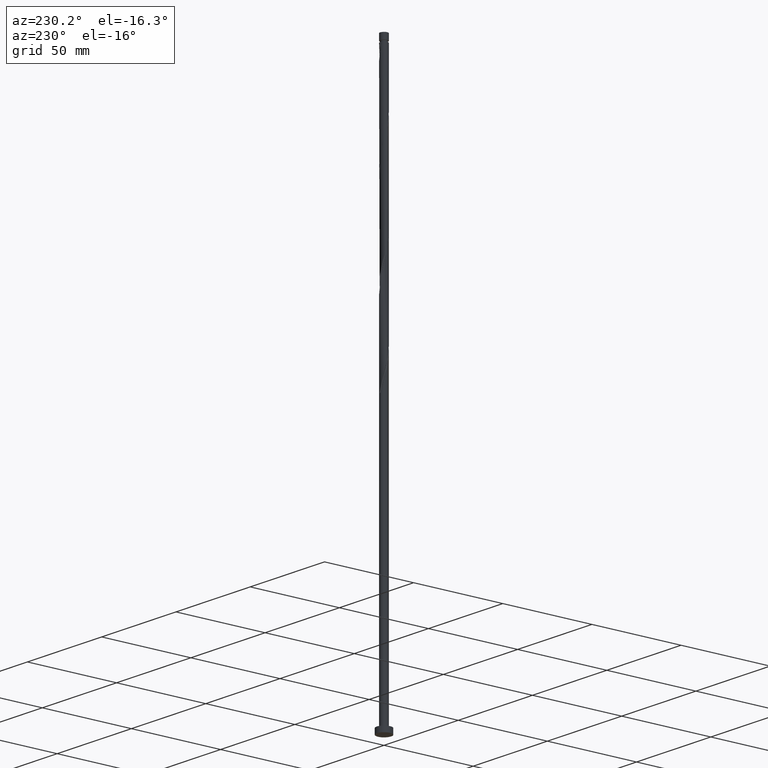
[diagram: clean part render]
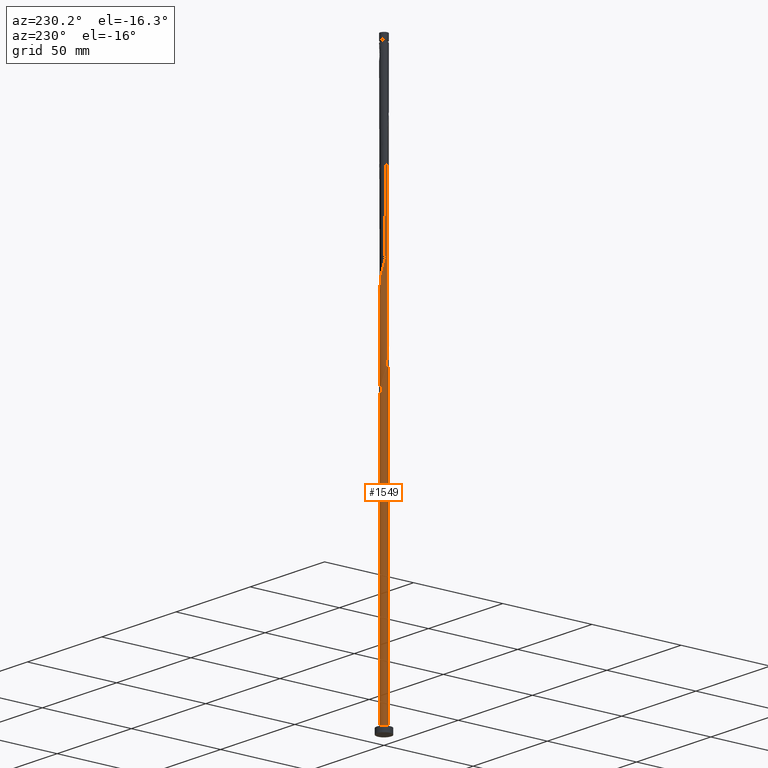
[diagram: same view with one face highlighted and labeled with its STEP entity id]
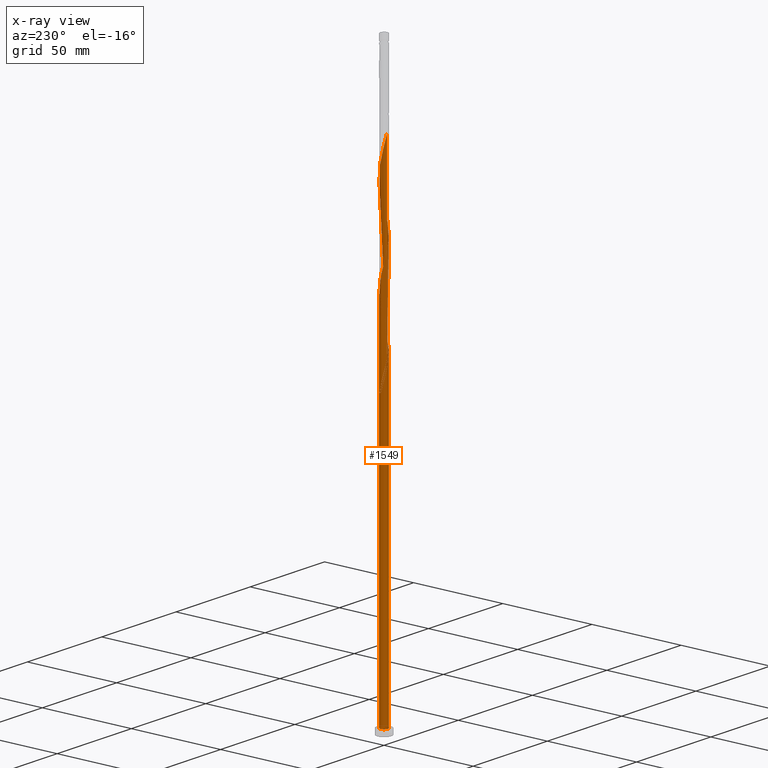
[diagram: x-ray of the same camera — body ghosted, the highlighted face saturated]
A machine part, auxiliary view. The second image highlights one B-rep face of the part: STEP entity #1549.
The next image is the same camera in x-ray: the body ghosted, the highlighted face saturated — about 0% of this face is hidden behind the body in this view.
In plain terms, the highlighted cylindrical surface (bore or boss wall) has radius 2.1 mm, axis along (-0, -0, -1).
Its self-contained STEP definition (entity closure, byte-faithful):
#10 = CARTESIAN_POINT ( 'NONE',  ( -1.080954991017605282, 1.815908065240426250, 156.0155337602938346 ) ) ;
#25 = DIRECTION ( 'NONE',  ( 0.000000000000000000, 0.000000000000000000, 1.000000000000000000 ) ) ;
#42 = CARTESIAN_POINT ( 'NONE',  ( -0.7457696815047974992, 1.977324802898936973, 157.8905337602938630 ) ) ;
#55 = CARTESIAN_POINT ( 'NONE',  ( -2.100000000000000089, 0.000000000000000000, 315.0000000000000000 ) ) ;
#56 = CARTESIAN_POINT ( 'NONE',  ( -2.010914572924960897, -0.6497756338992116687, 167.2655337602938346 ) ) ;
#75 = CARTESIAN_POINT ( 'NONE',  ( -1.815908065240423808, 1.080954991017603728, 163.5155337602938914 ) ) ;
#86 = CARTESIAN_POINT ( 'NONE',  ( 0.2870755166819201620, 2.093698507840350054, 202.8905337602938630 ) ) ;
#97 = CARTESIAN_POINT ( 'NONE',  ( -1.869562289324894211, 0.9564187609694169145, 213.2030337602938630 ) ) ;
#106 = CARTESIAN_POINT ( 'NONE',  ( 0.5164225990933598576, 2.035511655369645290, 254.4530337602938346 ) ) ;
#113 = CARTESIAN_POINT ( 'NONE',  ( -0.8653653124584087530, 1.913411319082694018, 207.5780337602938914 ) ) ;
#121 = CARTESIAN_POINT ( 'NONE',  ( 0.9564187609694171366, 1.869562289324894211, 252.5780337602939198 ) ) ;
#129 = CARTESIAN_POINT ( 'NONE',  ( 0.4178947235847830788, -2.058000000000002938, 231.9530337602938346 ) ) ;
#145 = CARTESIAN_POINT ( 'NONE',  ( -1.977324802898939637, 0.7457696815047990535, 266.6405337602938630 ) ) ;
#146 = CARTESIAN_POINT ( 'NONE',  ( -2.100000000000003197, 1.302273739753111854E-15, 269.6535166823878740 ) ) ;
#151 = CARTESIAN_POINT ( 'NONE',  ( -2.093698507840350498, 0.2870755166819196624, 163.5155337602938914 ) ) ;
#176 = CARTESIAN_POINT ( 'NONE',  ( -1.869562289324894211, 0.9564187609694169145, 265.7030337602939198 ) ) ;
#181 = ORIENTED_EDGE ( 'NONE', *, *, #1765, .T. ) ;
#185 = CARTESIAN_POINT ( 'NONE',  ( -2.100000000000000089, 0.000000000000000000, 315.0000000000000000 ) ) ;
#192 = VERTEX_POINT ( 'NONE', #254 ) ;
#196 = CARTESIAN_POINT ( 'NONE',  ( 0.4178947235847830788, -2.058000000000002938, 179.4530337602938630 ) ) ;
#203 = DIRECTION ( 'NONE',  ( -0.000000000000000000, -0.000000000000000000, -1.000000000000000000 ) ) ;
#204 = CARTESIAN_POINT ( 'NONE',  ( 1.815908065240426472, 1.080954991017604838, 195.3905337602938630 ) ) ;
#211 = CARTESIAN_POINT ( 'NONE',  ( 1.761799775750848562, -1.167067840434034665, 186.0155337602938062 ) ) ;
#219 = CARTESIAN_POINT ( 'NONE',  ( 0.7457696815047992756, 1.977324802898939637, 201.0155337602938914 ) ) ;
#226 = CARTESIAN_POINT ( 'NONE',  ( 1.457930751211418796, -1.529844344593006999, 236.6405337602937777 ) ) ;
#234 = CARTESIAN_POINT ( 'NONE',  ( -2.010914572924960897, -0.6497756338992116687, 219.7655337602938062 ) ) ;
#244 = CARTESIAN_POINT ( 'NONE',  ( -2.105085427075044979, -0.1860138132703543223, 217.8905337602938346 ) ) ;
#252 = CARTESIAN_POINT ( 'NONE',  ( 1.167067840434034665, 1.761799775750848118, 251.6405337602938346 ) ) ;
#254 = CARTESIAN_POINT ( 'NONE',  ( 2.100000000000000089, 0.000000000000000000, 3.000000000000000000 ) ) ;
#257 = CARTESIAN_POINT ( 'NONE',  ( -1.869562289324894211, 0.9564187609694169145, 160.7030337602938914 ) ) ;
#261 = CARTESIAN_POINT ( 'NONE',  ( 2.093698507840350054, -0.2870755166819199955, 242.2655337602938630 ) ) ;
#301 = DIRECTION ( 'NONE',  ( 0.000000000000000000, -0.000000000000000000, -1.000000000000000000 ) ) ;
#330 = CARTESIAN_POINT ( 'NONE',  ( 2.010914572924960897, 0.6497756338992115577, 193.5155337602938062 ) ) ;
#336 = CARTESIAN_POINT ( 'NONE',  ( 1.080954991017604838, -1.815908065240426472, 182.2655337602938346 ) ) ;
#343 = CARTESIAN_POINT ( 'NONE',  ( -1.529844344593006999, -1.457930751211418796, 171.0155337602938346 ) ) ;
#347 = DIRECTION ( 'NONE',  ( -1.000000000000000000, 0.000000000000000000, 0.000000000000000000 ) ) ;
#353 = CARTESIAN_POINT ( 'NONE',  ( -2.100000000000003642, -1.932887671037570371E-15, 164.6535166823878171 ) ) ;
#364 = CARTESIAN_POINT ( 'NONE',  ( 2.035511655369645290, -0.5164225990933597465, 241.3280337602938630 ) ) ;
#373 = CARTESIAN_POINT ( 'NONE',  ( -2.093698507840350498, 0.2870755166819196624, 216.0155337602938630 ) ) ;
#382 = CARTESIAN_POINT ( 'NONE',  ( 2.058000000000002938, 0.4178947235847829123, 245.0780337602938630 ) ) ;
#390 = CARTESIAN_POINT ( 'NONE',  ( -1.080954991017605282, 1.815908065240426250, 261.0155337602938630 ) ) ;
#399 = CARTESIAN_POINT ( 'NONE',  ( -0.7457696815047991645, -1.977324802898939637, 227.2655337602938346 ) ) ;
#410 = CARTESIAN_POINT ( 'NONE',  ( -2.100000000000000089, 0.000000000000000000, 3.000000000000000000 ) ) ;
#452 = CARTESIAN_POINT ( 'NONE',  ( -1.167067840434032222, 1.761799775750846120, 159.7655337602938062 ) ) ;
#462 = EDGE_CURVE ( 'NONE', #192, #553, #1262, .T. ) ;
#463 = CARTESIAN_POINT ( 'NONE',  ( -1.348456092513521387, -1.609865263481134345, 171.9530337602938630 ) ) ;
#471 = CARTESIAN_POINT ( 'NONE',  ( 1.457930751211418796, -1.529844344593006999, 184.1405337602938630 ) ) ;
#479 = CARTESIAN_POINT ( 'NONE',  ( -2.099999999999999645, 2.488872734714418204E-15, 168.0025508381999089 ) ) ;
#480 = CARTESIAN_POINT ( 'NONE',  ( -1.167067840434034665, -1.761799775750848340, 172.8905337602937493 ) ) ;
#487 = CARTESIAN_POINT ( 'NONE',  ( -1.815908065240426472, -1.080954991017605060, 169.1405337602938062 ) ) ;
#495 = CARTESIAN_POINT ( 'NONE',  ( -1.913411319082694018, -0.8653653124584085310, 168.2030337602938914 ) ) ;
#499 = CARTESIAN_POINT ( 'NONE',  ( 0.1860138132703544611, 2.105085427075041427, 154.1405337602938630 ) ) ;
#505 = CARTESIAN_POINT ( 'NONE',  ( -1.167067840434034665, -1.761799775750848340, 225.3905337602938630 ) ) ;
#512 = CARTESIAN_POINT ( 'NONE',  ( 0.6497756338992116687, -2.010914572924960897, 232.8905337602938346 ) ) ;
#521 = CARTESIAN_POINT ( 'NONE',  ( -0.5164225990933595245, -2.035511655369645290, 228.2030337602938914 ) ) ;
#530 = CARTESIAN_POINT ( 'NONE',  ( -0.05053085170578285740, -2.099391967457697739, 230.0780337602938914 ) ) ;
#539 = CARTESIAN_POINT ( 'NONE',  ( -0.6497756338992117797, 2.010914572924960897, 259.1405337602938062 ) ) ;
#553 = VERTEX_POINT ( 'NONE', #410 ) ;
#554 = CARTESIAN_POINT ( 'NONE',  ( -1.269442871114512705, 1.672876204916717180, 156.9530337602938062 ) ) ;
#561 = DIRECTION ( 'NONE',  ( 1.000000000000000000, 0.000000000000000000, 0.000000000000000000 ) ) ;
#579 = VERTEX_POINT ( 'NONE', #146 ) ;
#593 = CARTESIAN_POINT ( 'NONE',  ( -2.099391967457697739, 0.05053085170578271168, 269.4530337602939198 ) ) ;
#601 = EDGE_CURVE ( 'NONE', #579, #1711, #1681, .T. ) ;
#604 = CARTESIAN_POINT ( 'NONE',  ( -0.9564187609694171366, -1.869562289324894211, 173.8280337602938346 ) ) ;
#614 = CARTESIAN_POINT ( 'NONE',  ( 2.105085427075044979, 0.1860138132703540170, 191.6405337602938630 ) ) ;
#620 = CARTESIAN_POINT ( 'NONE',  ( -0.5164225990933595245, -2.035511655369645290, 175.7030337602938914 ) ) ;
#623 = CARTESIAN_POINT ( 'NONE',  ( -0.05053085170578218432, 2.099391967457693298, 155.0780337602938914 ) ) ;
#633 = CARTESIAN_POINT ( 'NONE',  ( 0.05053085170578318353, 2.099391967457698183, 203.8280337602938914 ) ) ;
#643 = CARTESIAN_POINT ( 'NONE',  ( -1.269442871114512705, 1.672876204916717180, 209.4530337602938630 ) ) ;
#653 = CARTESIAN_POINT ( 'NONE',  ( 0.2870755166819201620, 2.093698507840350054, 255.3905337602938062 ) ) ;
#662 = CARTESIAN_POINT ( 'NONE',  ( -1.761799775750848562, 1.167067840434034665, 212.2655337602938346 ) ) ;
#669 = CARTESIAN_POINT ( 'NONE',  ( -0.1860138132703539338, 2.105085427075044979, 257.2655337602938062 ) ) ;
#679 = CARTESIAN_POINT ( 'NONE',  ( -1.609865263481134345, 1.348456092513521165, 263.8280337602938630 ) ) ;
#704 = CARTESIAN_POINT ( 'NONE',  ( -2.100000000000003642, -1.932887671037570371E-15, 164.6535166823878171 ) ) ;
#715 = CARTESIAN_POINT ( 'NONE',  ( -2.099999999999999645, 2.488872734714418599E-15, 168.0025508381999089 ) ) ;
#732 = EDGE_CURVE ( 'NONE', #735, #1512, #954, .T. ) ;
#735 = VERTEX_POINT ( 'NONE', #1678 ) ;
#737 = AXIS2_PLACEMENT_3D ( 'NONE', #1293, #847, #1434 ) ;
#750 = CARTESIAN_POINT ( 'NONE',  ( 1.269442871114512705, -1.672876204916717180, 183.2030337602938914 ) ) ;
#758 = CARTESIAN_POINT ( 'NONE',  ( -1.672876204916714071, 1.269442871114510485, 162.5780337602937777 ) ) ;
#763 = CARTESIAN_POINT ( 'NONE',  ( 1.977324802898939637, -0.7457696815047991645, 187.8905337602938914 ) ) ;
#770 = CARTESIAN_POINT ( 'NONE',  ( 1.167067840434034665, 1.761799775750848118, 199.1405337602938062 ) ) ;
#778 = CARTESIAN_POINT ( 'NONE',  ( -2.099391967457697739, 0.05053085170578271168, 216.9530337602938914 ) ) ;
#786 = CARTESIAN_POINT ( 'NONE',  ( 2.105085427075044979, 0.1860138132703540170, 244.1405337602938346 ) ) ;
#793 = VERTEX_POINT ( 'NONE', #1254 ) ;
#797 = CARTESIAN_POINT ( 'NONE',  ( 1.761799775750848562, -1.167067840434034665, 238.5155337602938630 ) ) ;
#806 = CARTESIAN_POINT ( 'NONE',  ( -1.457930751211419018, 1.529844344593006777, 210.3905337602938346 ) ) ;
#811 = ORIENTED_EDGE ( 'NONE', *, *, #601, .F. ) ;
#812 = CARTESIAN_POINT ( 'NONE',  ( -1.977324802898939637, 0.7457696815047990535, 161.6405337602938062 ) ) ;
#815 = CARTESIAN_POINT ( 'NONE',  ( 1.348456092513521387, 1.609865263481134123, 250.7030337602938346 ) ) ;
#823 =( BOUNDED_CURVE ( )  B_SPLINE_CURVE ( 2, ( #1460, #1326, #1742, #56, #495, #487, #1050, #343, #463, #480, #604, #1043, #620, #1603, #1028, #1058, #196, #1189, #1759, #336, #750, #471, #917, #211, #1594, #763, #1480, #1035, #1588, #614, #893, #330, #1451, #204, #1318, #1748, #910, #770, #1471, #219, #1332, #86, #633, #1198, #1768, #1489, #113, #1788, #643, #806, #1359, #662, #97, #1796, #964, #373, #778, #244, #1208, #234, #1516, #1368, #1102, #1662, #1377, #505, #1227, #399, #521, #1499, #530, #1083, #129, #512, #1074, #1340, #1067, #226, #1626, #797, #1638, #1217, #364, #261, #928, #786, #382, #947, #1349, #1507, #1094, #1647, #815, #252, #121, #937, #106, #653, #1655, #669, #1236, #539, #1777, #390, #1246, #956, #679, #1804, #176, #145, #1388, #1283, #593, #1425, #1114 ),
 .UNSPECIFIED., .F., .T. ) 
 B_SPLINE_CURVE_WITH_KNOTS ( ( 3, 2, 2, 2, 2, 2, 2, 2, 2, 2, 2, 2, 2, 2, 2, 2, 2, 2, 2, 2, 2, 2, 2, 2, 2, 2, 2, 2, 2, 2, 2, 2, 2, 2, 2, 2, 2, 2, 2, 2, 2, 2, 2, 2, 2, 2, 2, 2, 2, 2, 2, 2, 2, 2, 2, 2, 2, 3 ),
 ( 0.05453034012992211826, 0.06250000000000000000, 0.07142857142857139685, 0.08035714285714290472, 0.08928571428571430157, 0.09821428571428569843, 0.1071428571428570953, 0.1160714285714286031, 0.1250000000000000000, 0.1339285714285713969, 0.1428571428571429047, 0.1517857142857143016, 0.1607142857142856984, 0.1696428571428570953, 0.1785714285714286031, 0.1875000000000000000, 0.1964285714285713969, 0.2053571428571429047, 0.2142857142857143016, 0.2232142857142856984, 0.2321428571428570953, 0.2410714285714286031, 0.2500000000000000000, 0.2589285714285713969, 0.2678571428571429047, 0.2767857142857143016, 0.2857142857142856984, 0.2946428571428570953, 0.3035714285714286031, 0.3125000000000000000, 0.3214285714285713969, 0.3303571428571429047, 0.3392857142857143016, 0.3482142857142856984, 0.3571428571428570953, 0.3660714285714286031, 0.3750000000000000000, 0.3839285714285713969, 0.3928571428571429047, 0.4017857142857143016, 0.4107142857142856984, 0.4196428571428570953, 0.4285714285714286031, 0.4375000000000000000, 0.4464285714285713969, 0.4553571428571429047, 0.4642857142857143016, 0.4732142857142856984, 0.4821428571428570953, 0.4910714285714286031, 0.5000000000000000000, 0.5089285714285713969, 0.5178571428571427937, 0.5267857142857143016, 0.5357142857142856984, 0.5446428571428572063, 0.5535714285714286031, 0.5545303401299220836 ),
 .UNSPECIFIED. ) 
 CURVE ( )  GEOMETRIC_REPRESENTATION_ITEM ( )  RATIONAL_B_SPLINE_CURVE ( ( 0.9079949616362350540, 0.9039886423360981027, 0.9090909090909650159, 0.9033747362666397773, 0.9090909090909650159, 0.9033747362666397773, 0.9090909090909650159, 0.9033747362666397773, 0.9090909090909650159, 0.9033747362666397773, 0.9090909090909650159, 0.9033747362666397773, 0.9090909090909650159, 0.9033747362666397773, 0.9090909090909650159, 0.9033747362666397773, 0.9090909090909650159, 0.9033747362666397773, 0.9090909090909650159, 0.9033747362666397773, 0.9090909090909650159, 0.9033747362666397773, 0.9090909090909650159, 0.9033747362666397773, 0.9090909090909650159, 0.9033747362666397773, 0.9090909090909650159, 0.9033747362666397773, 0.9090909090909650159, 0.9033747362666397773, 0.9090909090909650159, 0.9033747362666397773, 0.9090909090909650159, 0.9033747362666397773, 0.9090909090909650159, 0.9033747362666397773, 0.9090909090909650159, 0.9033747362666397773, 0.9090909090909650159, 0.9033747362666397773, 0.9090909090909650159, 0.9033747362666397773, 0.9090909090909650159, 0.9033747362666397773, 0.9090909090909650159, 0.9033747362666397773, 0.9090909090909650159, 0.9033747362666397773, 0.9090909090909650159, 0.9033747362666397773, 0.9090909090909650159, 0.9033747362666397773, 0.9090909090909650159, 0.9033747362666397773, 0.9090909090909650159, 0.9033747362666397773, 0.9090909090909650159, 0.9033747362666397773, 0.9090909090909650159, 0.9033747362666397773, 0.9090909090909650159, 0.9033747362666397773, 0.9090909090909650159, 0.9033747362666397773, 0.9090909090909650159, 0.9033747362666397773, 0.9090909090909650159, 0.9033747362666397773, 0.9090909090909650159, 0.9033747362666397773, 0.9090909090909650159, 0.9033747362666397773, 0.9090909090909650159, 0.9033747362666397773, 0.9090909090909650159, 0.9033747362666397773, 0.9090909090909650159, 0.9033747362666397773, 0.9090909090909650159, 0.9033747362666397773, 0.9090909090909650159, 0.9033747362666397773, 0.9090909090909650159, 0.9033747362666397773, 0.9090909090909650159, 0.9033747362666397773, 0.9090909090909650159, 0.9033747362666397773, 0.9090909090909650159, 0.9033747362666397773, 0.9090909090909650159, 0.9033747362666397773, 0.9090909090909650159, 0.9033747362666397773, 0.9090909090909650159, 0.9033747362666397773, 0.9090909090909650159, 0.9033747362666397773, 0.9090909090909650159, 0.9033747362666397773, 0.9090909090909650159, 0.9033747362666397773, 0.9090909090909650159, 0.9033747362666397773, 0.9090909090909650159, 0.9033747362666397773, 0.9090909090909650159, 0.9033747362666397773, 0.9090909090909650159, 0.9033747362666397773, 0.9090909090909650159, 0.9033747362666397773, 0.9090909090909650159, 0.9084770030215066905, 0.9079949616362349429 ) ) 
 REPRESENTATION_ITEM ( '' )  );
#832 = ORIENTED_EDGE ( 'NONE', *, *, #977, .T. ) ;
#833 = CARTESIAN_POINT ( 'NONE',  ( -0.8653653124584087530, 1.913411319082694018, 155.0780337602938630 ) ) ;
#840 = EDGE_CURVE ( 'NONE', #1711, #793, #1150, .T. ) ;
#841 = ORIENTED_EDGE ( 'NONE', *, *, #1765, .F. ) ;
#842 = CARTESIAN_POINT ( 'NONE',  ( -0.6497756338992117797, 2.010914572924960897, 154.1405337602938630 ) ) ;
#847 = DIRECTION ( 'NONE',  ( 0.000000000000000000, 0.000000000000000000, 1.000000000000000000 ) ) ;
#853 = VECTOR ( 'NONE', #1473, 1000.000000000000000 ) ;
#866 = EDGE_LOOP ( 'NONE', ( #811, #1677, #181, #1439, #1122, #841, #1253, #832, #1279 ) ) ;
#889 = FACE_OUTER_BOUND ( 'NONE', #866, .T. ) ;
#893 = CARTESIAN_POINT ( 'NONE',  ( 2.058000000000002938, 0.4178947235847829123, 192.5780337602938914 ) ) ;
#901 = DIRECTION ( 'NONE',  ( -0.000000000000000000, -0.000000000000000000, -1.000000000000000000 ) ) ;
#910 = CARTESIAN_POINT ( 'NONE',  ( 1.348456092513521387, 1.609865263481134123, 198.2030337602938630 ) ) ;
#917 = CARTESIAN_POINT ( 'NONE',  ( 1.609865263481134123, -1.348456092513521387, 185.0780337602938914 ) ) ;
#928 = CARTESIAN_POINT ( 'NONE',  ( 2.099391967457697739, -0.05053085170578303087, 243.2030337602938630 ) ) ;
#937 = CARTESIAN_POINT ( 'NONE',  ( 0.7457696815047992756, 1.977324802898939637, 253.5155337602938346 ) ) ;
#941 = CIRCLE ( 'NONE', #968, 2.100000000000000089 ) ;
#947 = CARTESIAN_POINT ( 'NONE',  ( 2.010914572924960897, 0.6497756338992115577, 246.0155337602938062 ) ) ;
#954 =( BOUNDED_CURVE ( )  B_SPLINE_CURVE ( 2, ( #1513, #842, #833, #10, #554, #1123, #1553, #1668, #257, #812, #1374, #151, #1099, #1385, #704 ),
 .UNSPECIFIED., .F., .T. ) 
 B_SPLINE_CURVE_WITH_KNOTS ( ( 3, 2, 2, 2, 2, 2, 2, 3 ),
 ( 0.000000000000000000, 0.008928571428571396851, 0.01785714285714290472, 0.02678571428571430504, 0.03571428571428569843, 0.04464285714285709528, 0.05357142857142861009, 0.05453034012992211826 ),
 .UNSPECIFIED. ) 
 CURVE ( )  GEOMETRIC_REPRESENTATION_ITEM ( )  RATIONAL_B_SPLINE_CURVE ( ( 0.9090909090909650159, 0.9033747362666397773, 0.9090909090909650159, 0.9033747362666397773, 0.9090909090909650159, 0.9033747362666397773, 0.9090909090909650159, 0.9033747362666397773, 0.9090909090909650159, 0.9033747362666397773, 0.9090909090909650159, 0.9033747362666397773, 0.9090909090909650159, 0.9084770030215068015, 0.9079949616362350540 ) ) 
 REPRESENTATION_ITEM ( '' )  );
#956 = CARTESIAN_POINT ( 'NONE',  ( -1.457930751211419018, 1.529844344593006777, 262.8905337602939198 ) ) ;
#964 = CARTESIAN_POINT ( 'NONE',  ( -2.035511655369645290, 0.5164225990933593025, 215.0780337602938346 ) ) ;
#968 = AXIS2_PLACEMENT_3D ( 'NONE', #1613, #301, #347 ) ;
#970 = CARTESIAN_POINT ( 'NONE',  ( -2.099999999999999645, 0.2110579412044400749, 167.1642797592363081 ) ) ;
#977 = EDGE_CURVE ( 'NONE', #735, #793, #941, .T. ) ;
#1028 = CARTESIAN_POINT ( 'NONE',  ( -0.05053085170578285740, -2.099391967457697739, 177.5780337602938630 ) ) ;
#1032 = AXIS2_PLACEMENT_3D ( 'NONE', #1275, #25, #561 ) ;
#1035 = CARTESIAN_POINT ( 'NONE',  ( 2.093698507840350054, -0.2870755166819199955, 189.7655337602938914 ) ) ;
#1042 = LINE ( 'NONE', #185, #1591 ) ;
#1043 = CARTESIAN_POINT ( 'NONE',  ( -0.7457696815047991645, -1.977324802898939637, 174.7655337602938346 ) ) ;
#1050 = CARTESIAN_POINT ( 'NONE',  ( -1.672876204916717180, -1.269442871114512705, 170.0780337602938630 ) ) ;
#1058 = CARTESIAN_POINT ( 'NONE',  ( 0.1860138132703541558, -2.105085427075044979, 178.5155337602938346 ) ) ;
#1067 = CARTESIAN_POINT ( 'NONE',  ( 1.269442871114512705, -1.672876204916717180, 235.7030337602939198 ) ) ;
#1074 = CARTESIAN_POINT ( 'NONE',  ( 0.8653653124584083089, -1.913411319082694018, 233.8280337602939198 ) ) ;
#1083 = CARTESIAN_POINT ( 'NONE',  ( 0.1860138132703541558, -2.105085427075044979, 231.0155337602938346 ) ) ;
#1094 = CARTESIAN_POINT ( 'NONE',  ( 1.672876204916717180, 1.269442871114512705, 248.8280337602938914 ) ) ;
#1099 = CARTESIAN_POINT ( 'NONE',  ( -2.099391967457697739, 0.05053085170578271168, 164.4530337602938914 ) ) ;
#1102 = CARTESIAN_POINT ( 'NONE',  ( -1.672876204916717180, -1.269442871114512705, 222.5780337602938062 ) ) ;
#1114 = CARTESIAN_POINT ( 'NONE',  ( -2.100000000000003197, 1.302273739753111854E-15, 269.6535166823878740 ) ) ;
#1122 = ORIENTED_EDGE ( 'NONE', *, *, #462, .T. ) ;
#1123 = CARTESIAN_POINT ( 'NONE',  ( -1.457930751211419018, 1.529844344593006777, 157.8905337602938346 ) ) ;
#1150 =( BOUNDED_CURVE ( )  B_SPLINE_CURVE ( 2, ( #715, #970, #1244, #1801, #1761, #75, #758, #1621, #1155, #452, #1455, #42, #1321, #1464, #623, #499, #1606 ),
 .UNSPECIFIED., .F., .T. ) 
 B_SPLINE_CURVE_WITH_KNOTS ( ( 3, 2, 2, 2, 2, 2, 2, 2, 3 ),
 ( 0.9295303401299221946, 0.9375000000000000000, 0.9464285714285713969, 0.9553571428571429047, 0.9642857142857143016, 0.9732142857142856984, 0.9821428571428570953, 0.9910714285714286031, 1.000000000000000000 ),
 .UNSPECIFIED. ) 
 CURVE ( )  GEOMETRIC_REPRESENTATION_ITEM ( )  RATIONAL_B_SPLINE_CURVE ( ( 0.9079949616362282816, 0.9039886423360914414, 0.9090909090909583545, 0.9033747362666331160, 0.9090909090909583545, 0.9033747362666331160, 0.9090909090909583545, 0.9033747362666331160, 0.9090909090909583545, 0.9033747362666331160, 0.9090909090909583545, 0.9033747362666331160, 0.9090909090909583545, 0.9033747362666331160, 0.9090909090909583545, 0.9033747362666331160, 0.9090909090909583545 ) ) 
 REPRESENTATION_ITEM ( '' )  );
#1155 = CARTESIAN_POINT ( 'NONE',  ( -1.348456092513518279, 1.609865263481131681, 160.7030337602939198 ) ) ;
#1175 = CYLINDRICAL_SURFACE ( 'NONE', #1794, 2.100000000000000089 ) ;
#1189 = CARTESIAN_POINT ( 'NONE',  ( 0.6497756338992116687, -2.010914572924960897, 180.3905337602938062 ) ) ;
#1198 = CARTESIAN_POINT ( 'NONE',  ( -0.1860138132703539338, 2.105085427075044979, 204.7655337602938630 ) ) ;
#1208 = CARTESIAN_POINT ( 'NONE',  ( -2.058000000000002938, -0.4178947235847831898, 218.8280337602938914 ) ) ;
#1217 = CARTESIAN_POINT ( 'NONE',  ( 1.977324802898939637, -0.7457696815047991645, 240.3905337602938346 ) ) ;
#1227 = CARTESIAN_POINT ( 'NONE',  ( -0.9564187609694171366, -1.869562289324894211, 226.3280337602939483 ) ) ;
#1236 = CARTESIAN_POINT ( 'NONE',  ( -0.4178947235847828012, 2.058000000000002938, 258.2030337602939198 ) ) ;
#1244 = CARTESIAN_POINT ( 'NONE',  ( -2.057999999999998941, 0.4178947235847830788, 166.3280337602938630 ) ) ;
#1246 = CARTESIAN_POINT ( 'NONE',  ( -1.269442871114512705, 1.672876204916717180, 261.9530337602938062 ) ) ;
#1253 = ORIENTED_EDGE ( 'NONE', *, *, #732, .F. ) ;
#1254 = CARTESIAN_POINT ( 'NONE',  ( 0.4178947235847833563, 2.057999999999998941, 153.2030337602938346 ) ) ;
#1262 = CIRCLE ( 'NONE', #737, 2.100000000000000089 ) ;
#1275 = CARTESIAN_POINT ( 'NONE',  ( 0.000000000000000000, 0.000000000000000000, 3.000000000000000000 ) ) ;
#1279 = ORIENTED_EDGE ( 'NONE', *, *, #840, .F. ) ;
#1283 = CARTESIAN_POINT ( 'NONE',  ( -2.093698507840350498, 0.2870755166819196624, 268.5155337602938630 ) ) ;
#1293 = CARTESIAN_POINT ( 'NONE',  ( 0.000000000000000000, 0.000000000000000000, 3.000000000000000000 ) ) ;
#1299 = CIRCLE ( 'NONE', #1032, 2.100000000000000089 ) ;
#1318 = CARTESIAN_POINT ( 'NONE',  ( 1.672876204916717180, 1.269442871114512705, 196.3280337602938346 ) ) ;
#1321 = CARTESIAN_POINT ( 'NONE',  ( -0.5164225990933580812, 2.035511655369642181, 156.9530337602938346 ) ) ;
#1326 = CARTESIAN_POINT ( 'NONE',  ( -2.100000000000003642, -0.2110579412044378544, 165.4917877613514179 ) ) ;
#1332 = CARTESIAN_POINT ( 'NONE',  ( 0.5164225990933598576, 2.035511655369645290, 201.9530337602938630 ) ) ;
#1335 = EDGE_CURVE ( 'NONE', #553, #192, #1299, .T. ) ;
#1340 = CARTESIAN_POINT ( 'NONE',  ( 1.080954991017604838, -1.815908065240426472, 234.7655337602938062 ) ) ;
#1349 = CARTESIAN_POINT ( 'NONE',  ( 1.913411319082694018, 0.8653653124584083089, 246.9530337602938630 ) ) ;
#1359 = CARTESIAN_POINT ( 'NONE',  ( -1.609865263481134345, 1.348456092513521165, 211.3280337602938914 ) ) ;
#1368 = CARTESIAN_POINT ( 'NONE',  ( -1.815908065240426472, -1.080954991017605060, 221.6405337602938346 ) ) ;
#1374 = CARTESIAN_POINT ( 'NONE',  ( -2.035511655369645290, 0.5164225990933593025, 162.5780337602938630 ) ) ;
#1377 = CARTESIAN_POINT ( 'NONE',  ( -1.348456092513521387, -1.609865263481134345, 224.4530337602938914 ) ) ;
#1385 = CARTESIAN_POINT ( 'NONE',  ( -2.100000000000003197, 0.02526908404941715855, 164.5531539941626988 ) ) ;
#1388 = CARTESIAN_POINT ( 'NONE',  ( -2.035511655369645290, 0.5164225990933593025, 267.5780337602938630 ) ) ;
#1425 = CARTESIAN_POINT ( 'NONE',  ( -2.100000000000003197, 0.02526908404941807795, 269.5531539941627557 ) ) ;
#1434 = DIRECTION ( 'NONE',  ( 1.000000000000000000, 0.000000000000000000, 0.000000000000000000 ) ) ;
#1439 = ORIENTED_EDGE ( 'NONE', *, *, #1335, .T. ) ;
#1444 = CARTESIAN_POINT ( 'NONE',  ( 0.000000000000000000, 0.000000000000000000, 315.0000000000000000 ) ) ;
#1451 = CARTESIAN_POINT ( 'NONE',  ( 1.913411319082694018, 0.8653653124584083089, 194.4530337602938630 ) ) ;
#1455 = CARTESIAN_POINT ( 'NONE',  ( -0.9564187609694146941, 1.869562289324891546, 158.8280337602938630 ) ) ;
#1460 = CARTESIAN_POINT ( 'NONE',  ( -2.100000000000003642, -1.932887671037570371E-15, 164.6535166823878171 ) ) ;
#1464 = CARTESIAN_POINT ( 'NONE',  ( -0.2870755166819187743, 2.093698507840346945, 156.0155337602938914 ) ) ;
#1471 = CARTESIAN_POINT ( 'NONE',  ( 0.9564187609694171366, 1.869562289324894211, 200.0780337602938630 ) ) ;
#1473 = DIRECTION ( 'NONE',  ( -0.000000000000000000, -0.000000000000000000, -1.000000000000000000 ) ) ;
#1480 = CARTESIAN_POINT ( 'NONE',  ( 2.035511655369645290, -0.5164225990933597465, 188.8280337602938630 ) ) ;
#1489 = CARTESIAN_POINT ( 'NONE',  ( -0.6497756338992117797, 2.010914572924960897, 206.6405337602938062 ) ) ;
#1499 = CARTESIAN_POINT ( 'NONE',  ( -0.2870755166819198290, -2.093698507840350498, 229.1405337602938630 ) ) ;
#1507 = CARTESIAN_POINT ( 'NONE',  ( 1.815908065240426472, 1.080954991017604838, 247.8905337602938062 ) ) ;
#1512 = VERTEX_POINT ( 'NONE', #353 ) ;
#1513 = CARTESIAN_POINT ( 'NONE',  ( -0.4178947235847829123, 2.058000000000002938, 153.2030337602938346 ) ) ;
#1516 = CARTESIAN_POINT ( 'NONE',  ( -1.913411319082694018, -0.8653653124584085310, 220.7030337602938062 ) ) ;
#1549 = ADVANCED_FACE ( 'NONE', ( #889 ), #1175, .T. ) ;
#1553 = CARTESIAN_POINT ( 'NONE',  ( -1.609865263481134345, 1.348456092513521165, 158.8280337602938630 ) ) ;
#1588 = CARTESIAN_POINT ( 'NONE',  ( 2.099391967457697739, -0.05053085170578303087, 190.7030337602938630 ) ) ;
#1591 = VECTOR ( 'NONE', #203, 1000.000000000000000 ) ;
#1594 = CARTESIAN_POINT ( 'NONE',  ( 1.869562289324894211, -0.9564187609694171366, 186.9530337602938346 ) ) ;
#1603 = CARTESIAN_POINT ( 'NONE',  ( -0.2870755166819198290, -2.093698507840350498, 176.6405337602938346 ) ) ;
#1606 = CARTESIAN_POINT ( 'NONE',  ( 0.4178947235847833563, 2.057999999999998941, 153.2030337602938346 ) ) ;
#1608 = EDGE_CURVE ( 'NONE', #1512, #579, #823, .T. ) ;
#1613 = CARTESIAN_POINT ( 'NONE',  ( 0.000000000000000000, 0.000000000000000000, 153.2030337602938346 ) ) ;
#1621 = CARTESIAN_POINT ( 'NONE',  ( -1.529844344593004113, 1.457930751211417686, 161.6405337602938062 ) ) ;
#1626 = CARTESIAN_POINT ( 'NONE',  ( 1.609865263481134123, -1.348456092513521387, 237.5780337602938346 ) ) ;
#1638 = CARTESIAN_POINT ( 'NONE',  ( 1.869562289324894211, -0.9564187609694171366, 239.4530337602938914 ) ) ;
#1647 = CARTESIAN_POINT ( 'NONE',  ( 1.529844344593006999, 1.457930751211418574, 249.7655337602938346 ) ) ;
#1655 = CARTESIAN_POINT ( 'NONE',  ( 0.05053085170578318353, 2.099391967457698183, 256.3280337602938630 ) ) ;
#1662 = CARTESIAN_POINT ( 'NONE',  ( -1.529844344593006999, -1.457930751211418796, 223.5155337602938346 ) ) ;
#1668 = CARTESIAN_POINT ( 'NONE',  ( -1.761799775750848562, 1.167067840434034665, 159.7655337602937493 ) ) ;
#1677 = ORIENTED_EDGE ( 'NONE', *, *, #1608, .F. ) ;
#1678 = CARTESIAN_POINT ( 'NONE',  ( -0.4178947235847829123, 2.058000000000002938, 153.2030337602938346 ) ) ;
#1681 = LINE ( 'NONE', #55, #853 ) ;
#1711 = VERTEX_POINT ( 'NONE', #479 ) ;
#1734 = DIRECTION ( 'NONE',  ( -1.000000000000000000, 0.000000000000000000, 0.000000000000000000 ) ) ;
#1742 = CARTESIAN_POINT ( 'NONE',  ( -2.058000000000002938, -0.4178947235847831898, 166.3280337602938630 ) ) ;
#1748 = CARTESIAN_POINT ( 'NONE',  ( 1.529844344593006999, 1.457930751211418574, 197.2655337602938346 ) ) ;
#1759 = CARTESIAN_POINT ( 'NONE',  ( 0.8653653124584083089, -1.913411319082694018, 181.3280337602938630 ) ) ;
#1761 = CARTESIAN_POINT ( 'NONE',  ( -1.913411319082690687, 0.8653653124584076428, 164.4530337602938914 ) ) ;
#1765 = EDGE_CURVE ( 'NONE', #1512, #553, #1042, .T. ) ;
#1768 = CARTESIAN_POINT ( 'NONE',  ( -0.4178947235847828012, 2.058000000000002938, 205.7030337602938914 ) ) ;
#1777 = CARTESIAN_POINT ( 'NONE',  ( -0.8653653124584087530, 1.913411319082694018, 260.0780337602938630 ) ) ;
#1788 = CARTESIAN_POINT ( 'NONE',  ( -1.080954991017605282, 1.815908065240426250, 208.5155337602938062 ) ) ;
#1794 = AXIS2_PLACEMENT_3D ( 'NONE', #1444, #901, #1734 ) ;
#1796 = CARTESIAN_POINT ( 'NONE',  ( -1.977324802898939637, 0.7457696815047990535, 214.1405337602938346 ) ) ;
#1801 = CARTESIAN_POINT ( 'NONE',  ( -2.010914572924957788, 0.6497756338992114467, 165.3905337602938630 ) ) ;
#1804 = CARTESIAN_POINT ( 'NONE',  ( -1.761799775750848562, 1.167067840434034665, 264.7655337602938630 ) ) ;